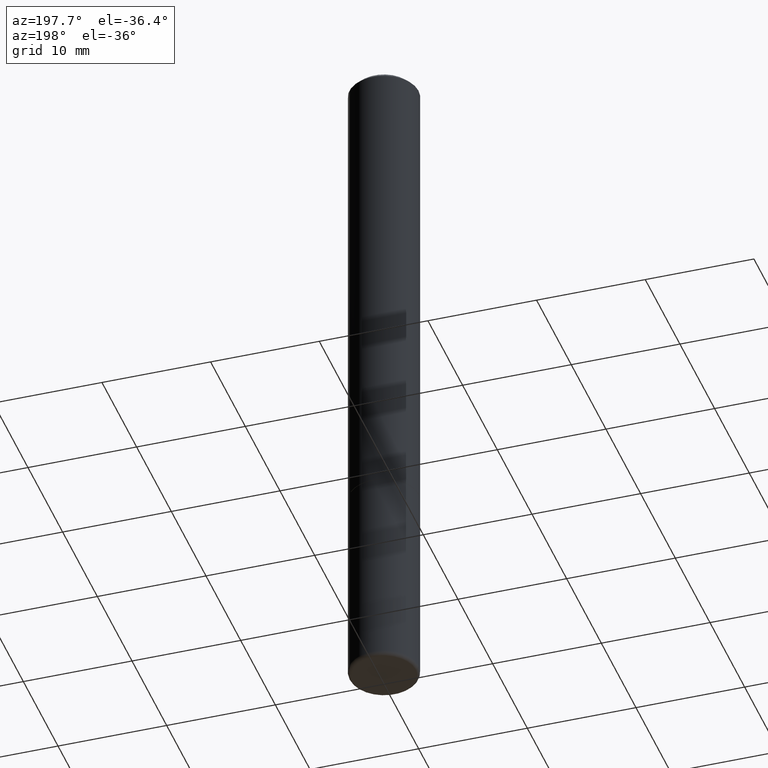
[diagram: clean part render]
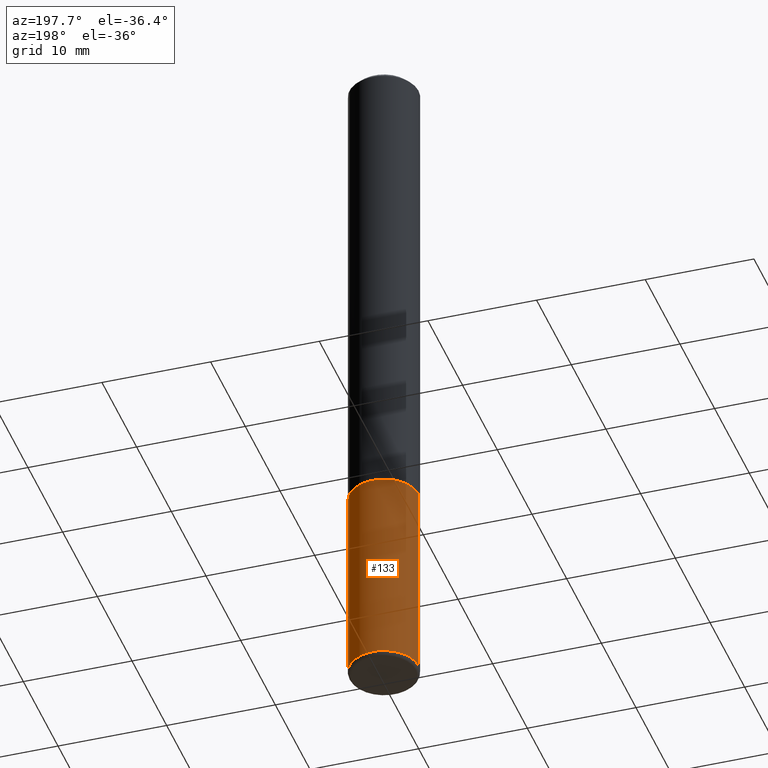
[diagram: same view with one face highlighted and labeled with its STEP entity id]
A machine part, auxiliary view. The second image highlights one B-rep face of the part: STEP entity #133.
In plain terms, the highlighted cylindrical surface (edge-blend (fillet) strip) has radius 3.175 mm, axis along (-0, 0, 1).
Its self-contained STEP definition (entity closure, byte-faithful):
#4 = CARTESIAN_POINT ( 'NONE',  ( -0.1250000000000000555, -7.788152707325091448E-15, -2.484999999999999876 ) ) ;
#11 = CARTESIAN_POINT ( 'NONE',  ( -0.1250000000000000000, 8.881784197001252323E-16, -6.148668862818632227E-30 ) ) ;
#18 = DIRECTION ( 'NONE',  ( -2.445468806185136597E-29, 3.491481338843145583E-15, 1.000000000000000000 ) ) ;
#21 = VECTOR ( 'NONE', #131, 39.37007874015748143 ) ;
#22 = EDGE_CURVE ( 'NONE', #279, #90, #228, .T. ) ;
#39 = CARTESIAN_POINT ( 'NONE',  ( 0.000000000000000000, 0.000000000000000000, 0.000000000000000000 ) ) ;
#41 = CARTESIAN_POINT ( 'NONE',  ( 4.279570410823989044E-29, -6.110092342975505460E-15, -1.750000000000000222 ) ) ;
#44 = DIRECTION ( 'NONE',  ( 1.000000000000000000, -6.982962677686270655E-15, 0.000000000000000000 ) ) ;
#47 = CARTESIAN_POINT ( 'NONE',  ( 0.1250000000000000000, -6.982962677686288010E-15, -1.750000000000000222 ) ) ;
#53 = ORIENTED_EDGE ( 'NONE', *, *, #306, .F. ) ;
#55 = VERTEX_POINT ( 'NONE', #47 ) ;
#57 = CARTESIAN_POINT ( 'NONE',  ( 0.1250000000000000555, -9.549201461736000019E-15, -2.484999999999999876 ) ) ;
#90 = VERTEX_POINT ( 'NONE', #4 ) ;
#101 = CYLINDRICAL_SURFACE ( 'NONE', #374, 0.1250000000000000000 ) ;
#109 = CARTESIAN_POINT ( 'NONE',  ( 6.076989983370064174E-29, -8.676331127025216680E-15, -2.484999999999999876 ) ) ;
#110 = FACE_OUTER_BOUND ( 'NONE', #313, .T. ) ;
#127 = DIRECTION ( 'NONE',  ( 1.000000000000000000, -6.982962677686266711E-15, 4.876176775795935793E-29 ) ) ;
#130 = VECTOR ( 'NONE', #227, 39.37007874015748143 ) ;
#131 = DIRECTION ( 'NONE',  ( -2.445468806185136877E-29, 3.491481338843145188E-15, 1.000000000000000000 ) ) ;
#133 = ADVANCED_FACE ( 'NONE', ( #110 ), #101, .T. ) ;
#161 = DIRECTION ( 'NONE',  ( -2.445468806185136597E-29, 3.491481338843145583E-15, 1.000000000000000000 ) ) ;
#196 = ORIENTED_EDGE ( 'NONE', *, *, #238, .F. ) ;
#209 = ORIENTED_EDGE ( 'NONE', *, *, #22, .T. ) ;
#222 = DIRECTION ( 'NONE',  ( -2.445468806185136597E-29, 3.491481338843145583E-15, 1.000000000000000000 ) ) ;
#227 = DIRECTION ( 'NONE',  ( -2.445468806185136877E-29, 3.491481338843145188E-15, 1.000000000000000000 ) ) ;
#228 = CIRCLE ( 'NONE', #240, 0.1250000000000000000 ) ;
#238 = EDGE_CURVE ( 'NONE', #279, #55, #261, .T. ) ;
#240 = AXIS2_PLACEMENT_3D ( 'NONE', #109, #18, #44 ) ;
#261 = LINE ( 'NONE', #262, #130 ) ;
#262 = CARTESIAN_POINT ( 'NONE',  ( 0.1250000000000000000, -8.728703347107833388E-16, 6.095220969744919741E-30 ) ) ;
#266 = ORIENTED_EDGE ( 'NONE', *, *, #354, .T. ) ;
#279 = VERTEX_POINT ( 'NONE', #57 ) ;
#296 = LINE ( 'NONE', #11, #21 ) ;
#306 = EDGE_CURVE ( 'NONE', #55, #387, #317, .T. ) ;
#313 = EDGE_LOOP ( 'NONE', ( #209, #266, #53, #196 ) ) ;
#317 = CIRCLE ( 'NONE', #390, 0.1250000000000000000 ) ;
#354 = EDGE_CURVE ( 'NONE', #90, #387, #296, .T. ) ;
#368 = DIRECTION ( 'NONE',  ( 1.000000000000000000, -6.982962677686262766E-15, 0.000000000000000000 ) ) ;
#374 = AXIS2_PLACEMENT_3D ( 'NONE', #39, #222, #127 ) ;
#387 = VERTEX_POINT ( 'NONE', #394 ) ;
#390 = AXIS2_PLACEMENT_3D ( 'NONE', #41, #161, #368 ) ;
#394 = CARTESIAN_POINT ( 'NONE',  ( -0.1250000000000000000, -6.505033315300235838E-15, -1.750000000000000222 ) ) ;